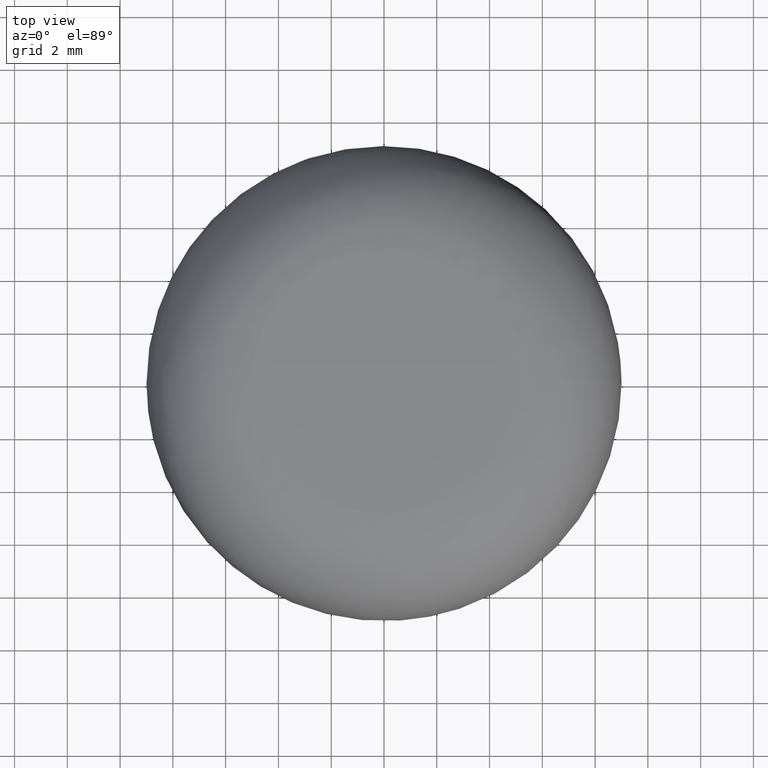
[diagram: clean part render]
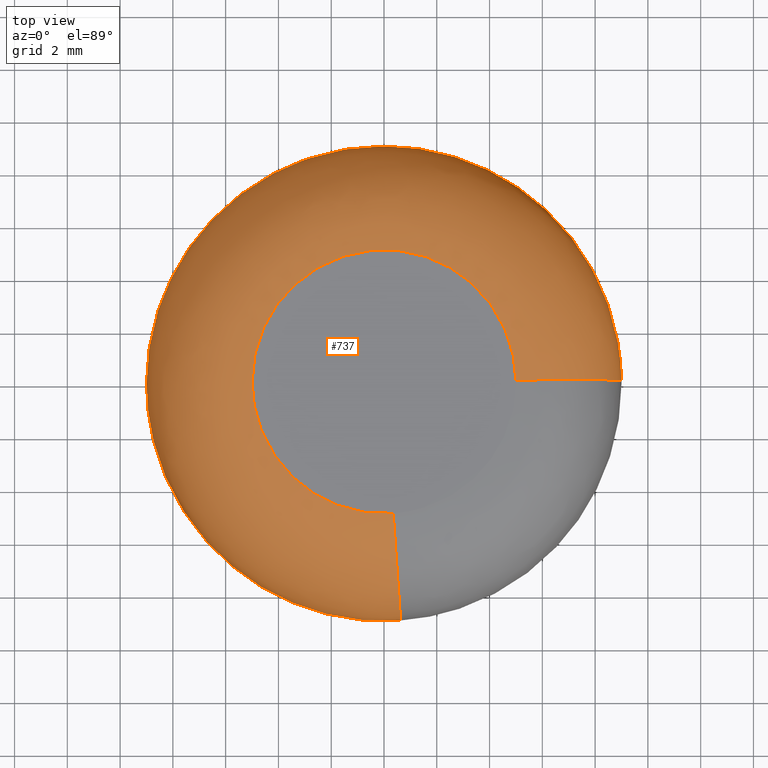
[diagram: same view with one face highlighted and labeled with its STEP entity id]
A machine part, top view. The second image highlights one B-rep face of the part: STEP entity #737.
In plain terms, the highlighted face is a freeform B-spline surface patch.
Its self-contained STEP definition (entity closure, byte-faithful):
#602=CARTESIAN_POINT('',(0.329269773765105,-4.710356636418756,10.990317432725162));
#603=CARTESIAN_POINT('',(0.194461520624245,-4.719780186786506,10.990317432725162));
#604=CARTESIAN_POINT('',(0.059334969798855,-4.721478326491450,10.990317432725156));
#605=CARTESIAN_POINT('',(-4.662143356692595,-4.780813296290305,10.990317432725162));
#606=CARTESIAN_POINT('',(-4.721478326491450,-0.059334969798856,10.990317432725156));
#607=CARTESIAN_POINT('',(-4.780813296290305,4.662143356692595,10.990317432725162));
#608=CARTESIAN_POINT('',(-0.059334969798856,4.721478326491450,10.990317432725156));
#609=CARTESIAN_POINT('',(4.662143356692595,4.780813296290305,10.990317432725162));
#610=CARTESIAN_POINT('',(4.721478326491450,0.059334969798856,10.990317432725156));
#611=CARTESIAN_POINT('',(0.649226428913743,-9.287484797052407,11.310149059556249));
#612=CARTESIAN_POINT('',(0.383422860690755,-9.306065360591491,11.310149059556245));
#613=CARTESIAN_POINT('',(0.116991699881011,-9.309413609548059,11.310149059556249));
#614=CARTESIAN_POINT('',(-9.192421909667049,-9.426405309429070,11.310149059556249));
#615=CARTESIAN_POINT('',(-9.309413609548059,-0.116991699881012,11.310149059556249));
#616=CARTESIAN_POINT('',(-9.426405309429070,9.192421909667049,11.310149059556249));
#617=CARTESIAN_POINT('',(-0.116991699881012,9.309413609548059,11.310149059556249));
#618=CARTESIAN_POINT('',(9.192421909667045,9.426405309429072,11.310149059556249));
#619=CARTESIAN_POINT('',(9.309413609548059,0.116991699881013,11.310149059556249));
#620=CARTESIAN_POINT('',(0.626923573936017,-8.968432125578344,6.721851477113931));
#621=CARTESIAN_POINT('',(0.370251147284943,-8.986374391605866,6.721851477113929));
#622=CARTESIAN_POINT('',(0.112972687715395,-8.989607618271931,6.721851477113929));
#623=CARTESIAN_POINT('',(-8.876634930556534,-9.102580305987324,6.721851477113930));
#624=CARTESIAN_POINT('',(-8.989607618271929,-0.112972687715396,6.721851477113929));
#625=CARTESIAN_POINT('',(-9.102580305987324,8.876634930556534,6.721851477113930));
#626=CARTESIAN_POINT('',(-0.112972687715396,8.989607618271929,6.721851477113929));
#627=CARTESIAN_POINT('',(8.876634930556534,9.102580305987328,6.721851477113930));
#628=CARTESIAN_POINT('',(8.989607618271929,0.112972687715397,6.721851477113929));
#636=(BOUNDED_SURFACE()B_SPLINE_SURFACE(2,2,((#602,#611,#620),(#603,#612,#621),(#604,#613,#622),(#605,#614,#623),(#606,#615,#624),(#607,#616,#625),(#608,#617,#626),(#609,#618,#627),(#610,#619,#628)),.UNSPECIFIED.,.F.,.F.,.U.)B_SPLINE_SURFACE_WITH_KNOTS((3,2,2,2,3),(3,3),(0.0,0.595825259022906,15.491470940190259,30.387116621357610,45.282762302524972),(0.0,7.289496258937021),.UNSPECIFIED.)GEOMETRIC_REPRESENTATION_ITEM()RATIONAL_B_SPLINE_SURFACE(((0.895729780140252,0.587800196502176,0.895729746073599),(0.905606538263746,0.594281571236513,0.905606503821457),(0.916342144029433,0.601326543189608,0.916342109178844),(0.647951743930232,0.425202076396837,0.647951719287144),(0.916342144029433,0.601326543189608,0.916342109178844),(0.647951743930232,0.425202076396837,0.647951719287144),(0.916342144029433,0.601326543189608,0.916342109178844),(0.647951743930232,0.425202076396837,0.647951719287144),(0.916342144029433,0.601326543189608,0.916342109178844)))REPRESENTATION_ITEM('')SURFACE());
#637=CARTESIAN_POINT('',(0.348666257935958,-4.987828369300749,11.0));
#638=VERTEX_POINT('',#637);
#639=CARTESIAN_POINT('',(-5.0,0.0,11.0));
#640=VERTEX_POINT('',#639);
#641=CARTESIAN_POINT('',(0.348666257935958,-4.987828369300749,11.000000000000005));
#642=CARTESIAN_POINT('',(0.174545579425353,-4.999999999999999,11.0));
#643=CARTESIAN_POINT('',(0.0,-5.0,11.0));
#644=CARTESIAN_POINT('',(-5.000000000000001,-5.000000000000001,11.0));
#645=CARTESIAN_POINT('',(-5.0,0.0,11.0));
#653=(BOUNDED_CURVE()B_SPLINE_CURVE(2,(#641,#642,#643,#644,#645),.UNSPECIFIED.,.F.,.U.)B_SPLINE_CURVE_WITH_KNOTS((3,2,3),(0.737833686531576,0.750000000000000,1.0),.UNSPECIFIED.)CURVE()GEOMETRIC_REPRESENTATION_ITEM()RATIONAL_B_SPLINE_CURVE((0.972879876379540,0.985746277148559,1.0,0.707106781186548,1.0))REPRESENTATION_ITEM(''));
#654=EDGE_CURVE('',#638,#640,#653,.T.);
#655=ORIENTED_EDGE('',*,*,#654,.T.);
#656=CARTESIAN_POINT('',(4.999605221082165,0.062830199452536,11.0));
#657=VERTEX_POINT('',#656);
#658=CARTESIAN_POINT('',(-5.0,0.0,11.0));
#659=CARTESIAN_POINT('',(-5.000000000000001,5.000000000000001,11.0));
#660=CARTESIAN_POINT('',(0.0,5.0,11.0));
#661=CARTESIAN_POINT('',(4.937559649467487,5.000000000000001,11.000000000000002));
#662=CARTESIAN_POINT('',(4.999605221082165,0.062830199452536,10.999999999999998));
#670=(BOUNDED_CURVE()B_SPLINE_CURVE(2,(#658,#659,#660,#661,#662),.UNSPECIFIED.,.F.,.U.)B_SPLINE_CURVE_WITH_KNOTS((3,2,3),(0.0,0.250000000000000,0.497784295919268),.UNSPECIFIED.)CURVE()GEOMETRIC_REPRESENTATION_ITEM()RATIONAL_B_SPLINE_CURVE((1.0,0.707106781186548,1.0,0.709702639987123,0.994854295638349))REPRESENTATION_ITEM(''));
#671=EDGE_CURVE('',#640,#657,#670,.T.);
#672=ORIENTED_EDGE('',*,*,#671,.T.);
#673=CARTESIAN_POINT('',(8.999289397834282,0.113094358954944,7.000000000009859));
#674=VERTEX_POINT('',#673);
#675=CARTESIAN_POINT('',(4.999605221082164,0.062830199452536,11.0));
#676=CARTESIAN_POINT('',(8.999289397814627,0.113094358949919,10.999999999872939));
#677=CARTESIAN_POINT('',(8.999289397834282,0.113094358954943,7.000000000009859));
#685=(BOUNDED_CURVE()B_SPLINE_CURVE(2,(#675,#676,#677),.UNSPECIFIED.,.F.,.U.)B_SPLINE_CURVE_WITH_KNOTS((3,3),(-1.734750791625395,-0.265249208346720),.UNSPECIFIED.)CURVE()GEOMETRIC_REPRESENTATION_ITEM()RATIONAL_B_SPLINE_CURVE((0.889029723564745,0.628638946224060,0.889029723574627))REPRESENTATION_ITEM(''));
#686=EDGE_CURVE('',#657,#674,#685,.T.);
#687=ORIENTED_EDGE('',*,*,#686,.T.);
#688=CARTESIAN_POINT('',(-9.0,0.0,7.0));
#689=VERTEX_POINT('',#688);
#690=CARTESIAN_POINT('',(-9.0,0.0,7.0));
#691=CARTESIAN_POINT('',(-9.0,9.0,6.999999999999999));
#692=CARTESIAN_POINT('',(0.0,9.0,7.0));
#693=CARTESIAN_POINT('',(8.887607369156402,9.0,7.000000000000002));
#694=CARTESIAN_POINT('',(8.999289397834282,0.113094358954944,7.000000000009859));
#702=(BOUNDED_CURVE()B_SPLINE_CURVE(2,(#690,#691,#692,#693,#694),.UNSPECIFIED.,.F.,.U.)B_SPLINE_CURVE_WITH_KNOTS((3,2,3),(0.0,0.250000000000000,0.497784295921542),.UNSPECIFIED.)CURVE()GEOMETRIC_REPRESENTATION_ITEM()RATIONAL_B_SPLINE_CURVE((1.0,0.707106781186547,1.0,0.709702639984458,0.994854295643583))REPRESENTATION_ITEM(''));
#703=EDGE_CURVE('',#689,#674,#702,.T.);
#704=ORIENTED_EDGE('',*,*,#703,.F.);
#705=CARTESIAN_POINT('',(0.627599264179879,-8.978091064563827,7.000000000009816));
#706=VERTEX_POINT('',#705);
#707=CARTESIAN_POINT('',(0.627599264179879,-8.978091064563827,7.000000000009816));
#708=CARTESIAN_POINT('',(0.314182042873311,-9.000000000000002,7.0));
#709=CARTESIAN_POINT('',(0.0,-9.0,7.0));
#710=CARTESIAN_POINT('',(-9.0,-9.0,6.999999999999999));
#711=CARTESIAN_POINT('',(-9.0,0.0,7.0));
#719=(BOUNDED_CURVE()B_SPLINE_CURVE(2,(#707,#708,#709,#710,#711),.UNSPECIFIED.,.F.,.U.)B_SPLINE_CURVE_WITH_KNOTS((3,2,3),(0.737833686535100,0.750000000000000,1.0),.UNSPECIFIED.)CURVE()GEOMETRIC_REPRESENTATION_ITEM()RATIONAL_B_SPLINE_CURVE((0.972879876386993,0.985746277152688,1.0,0.707106781186547,1.0))REPRESENTATION_ITEM(''));
#720=EDGE_CURVE('',#706,#689,#719,.T.);
#721=ORIENTED_EDGE('',*,*,#720,.F.);
#722=CARTESIAN_POINT('',(0.348666257935958,-4.987828369300749,11.0));
#723=CARTESIAN_POINT('',(0.627599264177604,-8.978091064544307,10.999999999795111));
#724=CARTESIAN_POINT('',(0.627599264179879,-8.978091064563827,7.000000000009816));
#732=(BOUNDED_CURVE()B_SPLINE_CURVE(2,(#722,#723,#724),.UNSPECIFIED.,.F.,.U.)B_SPLINE_CURVE_WITH_KNOTS((3,3),(-1.734750791605177,-0.265249208346698),.UNSPECIFIED.)CURVE()GEOMETRIC_REPRESENTATION_ITEM()RATIONAL_B_SPLINE_CURVE((0.869031711856822,0.614498216543253,0.869031711873493))REPRESENTATION_ITEM(''));
#733=EDGE_CURVE('',#638,#706,#732,.T.);
#734=ORIENTED_EDGE('',*,*,#733,.F.);
#735=EDGE_LOOP('',(#655,#672,#687,#704,#721,#734));
#736=FACE_OUTER_BOUND('',#735,.T.);
#737=ADVANCED_FACE('',(#736),#636,.T.);